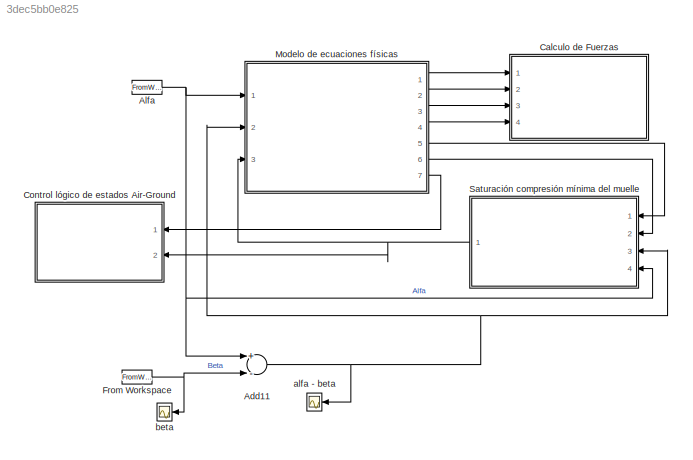
MODEL slx_3dec5bb0e825
KIND model
CONFIG AbsTol = auto
CONFIG EnableMultiTasking = off
CONFIG FixedStep = auto
CONFIG MaxStep = auto
CONFIG MinStep = auto
CONFIG RelTol = 1e-1
CONFIG SampleTimeConstraint = Unconstrained
CONFIG Solver = ode4
CONFIG SolverName = ode4
CONFIG StartTime = 0.0
CONFIG StopTime = tc
BLOCK [Sum] Add11
  InputSameDT = off
  Inputs = +-
  OutDataTypeStr = Inherit: Inherit via internal rule
  Ports = [2, 1]
  SaturateOnIntegerOverflow = off
BLOCK [FromWorkspace] Alfa 
  SampleTime = 0
  VariableName = alfa_t
  ZeroCross = on
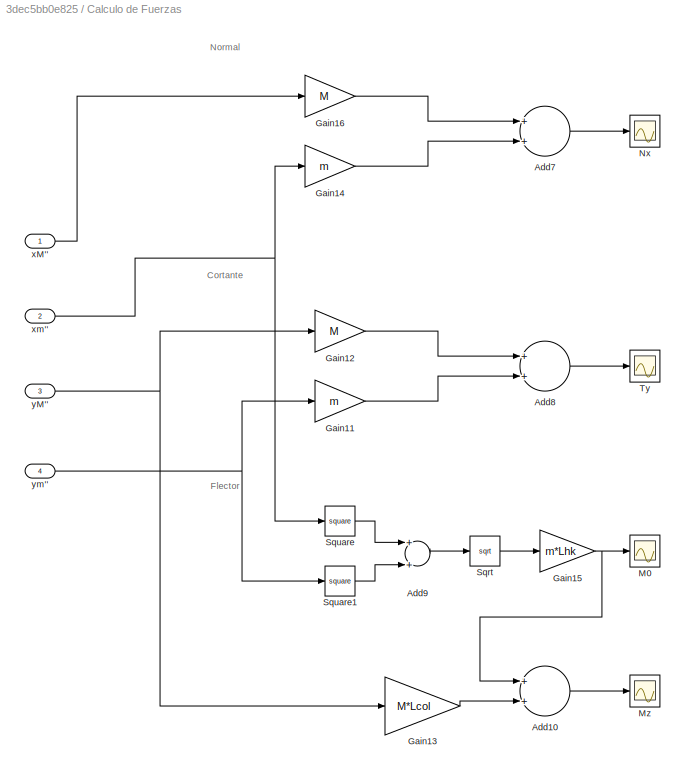
BLOCK [SubSystem] Calculo de Fuerzas
  Ports = [4]
  RequestExecContextInheritance = off
BLOCK [Sum] Calculo de Fuerzas/Add10
  InputSameDT = off
  OutDataTypeStr = Inherit: Inherit via internal rule
  Ports = [2, 1]
  SaturateOnIntegerOverflow = off
BLOCK [Sum] Calculo de Fuerzas/Add7
  InputSameDT = off
  OutDataTypeStr = Inherit: Inherit via internal rule
  Ports = [2, 1]
  SaturateOnIntegerOverflow = off
BLOCK [Sum] Calculo de Fuerzas/Add8
  InputSameDT = off
  OutDataTypeStr = Inherit: Inherit via internal rule
  Ports = [2, 1]
  SaturateOnIntegerOverflow = off
BLOCK [Sum] Calculo de Fuerzas/Add9
  InputSameDT = off
  OutDataTypeStr = Inherit: Inherit via internal rule
  Ports = [2, 1]
  SaturateOnIntegerOverflow = off
BLOCK [Gain] Calculo de Fuerzas/Gain11
  Gain = m
  OutDataTypeStr = Inherit: Inherit via internal rule
  ParamDataTypeStr = Inherit: Inherit via internal rule
  SaturateOnIntegerOverflow = off
BLOCK [Gain] Calculo de Fuerzas/Gain12
  Gain = M
  OutDataTypeStr = Inherit: Inherit via internal rule
  ParamDataTypeStr = Inherit: Inherit via internal rule
  SaturateOnIntegerOverflow = off
BLOCK [Gain] Calculo de Fuerzas/Gain13
  Gain = M*Lcol
  OutDataTypeStr = Inherit: Inherit via internal rule
  ParamDataTypeStr = Inherit: Inherit via internal rule
  SaturateOnIntegerOverflow = off
BLOCK [Gain] Calculo de Fuerzas/Gain14
  Gain = m
  OutDataTypeStr = Inherit: Inherit via internal rule
  ParamDataTypeStr = Inherit: Inherit via internal rule
  SaturateOnIntegerOverflow = off
BLOCK [Gain] Calculo de Fuerzas/Gain15
  Gain = m*Lhk
  OutDataTypeStr = Inherit: Inherit via internal rule
  ParamDataTypeStr = Inherit: Inherit via internal rule
  SaturateOnIntegerOverflow = off
BLOCK [Gain] Calculo de Fuerzas/Gain16
  Gain = M
  OutDataTypeStr = Inherit: Inherit via internal rule
  ParamDataTypeStr = Inherit: Inherit via internal rule
  SaturateOnIntegerOverflow = off
BLOCK [Scope] Calculo de Fuerzas/M0
  Floating = off
  NumInputPorts = 1
  Ports = [1]
  ScopeSpecificationString = Simulink.scopes.TimeScopeBlockCfg('CurrentConfiguration', extmgr.ConfigurationSet(extmgr.Configuration('Core','General UI',true),extmgr.Configuration('Core','Source UI',true),extmgr.Configuration('Sources','WiredSimulink',true,'DataLoggingVariableName','M0','DataLogging',true),extmgr.Configuration('Visuals','Time Domain',true,'SerializedDisplays',{struct('MinYLimReal','-2224357217.79249','MaxYLimR...<+1496ch>
BLOCK [Scope] Calculo de Fuerzas/Mz
  Floating = off
  NumInputPorts = 1
  Ports = [1]
  ScopeSpecificationString = Simulink.scopes.TimeScopeBlockCfg('CurrentConfiguration', extmgr.ConfigurationSet(extmgr.Configuration('Core','General UI',true),extmgr.Configuration('Core','Source UI',true),extmgr.Configuration('Sources','WiredSimulink',true,'DataLoggingVariableName','Mz','DataLogging',true),extmgr.Configuration('Visuals','Time Domain',true,'SerializedDisplays',{struct('MinYLimReal','-2.0288','MaxYLimReal','2.87...<+1419ch>
BLOCK [Scope] Calculo de Fuerzas/Nx
  Floating = off
  NumInputPorts = 1
  Ports = [1]
  ScopeSpecificationString = Simulink.scopes.TimeScopeBlockCfg('CurrentConfiguration', extmgr.ConfigurationSet(extmgr.Configuration('Core','General UI',true),extmgr.Configuration('Core','Source UI',true),extmgr.Configuration('Sources','WiredSimulink',true,'DataLoggingVariableName','Nx','DataLogging',true),extmgr.Configuration('Visuals','Time Domain',true,'SerializedDisplays',{struct('MinYLimReal','-2.0288','MaxYLimReal','2.87...<+1418ch>
BLOCK [Sqrt] Calculo de Fuerzas/Sqrt
BLOCK [Math] Calculo de Fuerzas/Square
  Operator = square
  Ports = [1, 1]
BLOCK [Math] Calculo de Fuerzas/Square1
  Operator = square
  Ports = [1, 1]
BLOCK [Scope] Calculo de Fuerzas/Ty
  Floating = off
  NumInputPorts = 1
  Ports = [1]
  ScopeSpecificationString = Simulink.scopes.TimeScopeBlockCfg('CurrentConfiguration', extmgr.ConfigurationSet(extmgr.Configuration('Core','General UI',true),extmgr.Configuration('Core','Source UI',true),extmgr.Configuration('Sources','WiredSimulink',true,'DataLoggingVariableName','Ty','DataLogging',true),extmgr.Configuration('Visuals','Time Domain',true,'SerializedDisplays',{struct('MinYLimReal','-2.0288','MaxYLimReal','2.87...<+1418ch>
BLOCK [Inport] Calculo de Fuerzas/xM''
  IconDisplay = Port number
BLOCK [Inport] Calculo de Fuerzas/xm''
  IconDisplay = Port number
  Port = 2
BLOCK [Inport] Calculo de Fuerzas/yM''
  IconDisplay = Port number
  Port = 3
BLOCK [Inport] Calculo de Fuerzas/ym''
  IconDisplay = Port number
  Port = 4
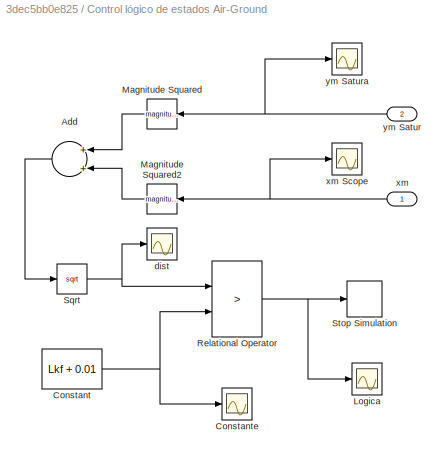
BLOCK [SubSystem] Control lógico de estados Air-Ground
  Ports = [2]
  RequestExecContextInheritance = off
BLOCK [Sum] Control lógico de estados Air-Ground/Add
  InputSameDT = off
  OutDataTypeStr = Inherit: Inherit via internal rule
  Ports = [2, 1]
  SaturateOnIntegerOverflow = off
BLOCK [Constant] Control lógico de estados Air-Ground/Constant
  Value = Lkf + 0.01
BLOCK [Scope] Control lógico de estados Air-Ground/Constante
  Floating = off
  NumInputPorts = 1
  Ports = [1]
  ScopeSpecificationString = Simulink.scopes.TimeScopeBlockCfg('CurrentConfiguration', extmgr.ConfigurationSet(extmgr.Configuration('Core','General UI',true),extmgr.Configuration('Core','Source UI',true),extmgr.Configuration('Sources','WiredSimulink',true,'DataLoggingVariableName','ScopeData2','DataLoggingSaveFormat','Array'),extmgr.Configuration('Visuals','Time Domain',true,'SerializedDisplays',{struct('MinYLimReal','0.185',...<+1477ch>
BLOCK [Scope] Control lógico de estados Air-Ground/Logica
  Floating = off
  NumInputPorts = 1
  Ports = [1]
  ScopeSpecificationString = Simulink.scopes.TimeScopeBlockCfg('CurrentConfiguration', extmgr.ConfigurationSet(extmgr.Configuration('Core','General UI',true),extmgr.Configuration('Core','Source UI',true),extmgr.Configuration('Sources','WiredSimulink',true,'DataLoggingVariableName','ScopeData1','DataLoggingSaveFormat','Array'),extmgr.Configuration('Visuals','Time Domain',true,'SerializedDisplays',{struct('MinYLimReal','-0.125'...<+1494ch>
BLOCK [Math] Control lógico de estados Air-Ground/Magnitude Squared
  Operator = magnitude^2
  Ports = [1, 1]
BLOCK [Math] Control lógico de estados Air-Ground/Magnitude Squared2
  Operator = magnitude^2
  Ports = [1, 1]
BLOCK [RelationalOperator] Control lógico de estados Air-Ground/Relational Operator
  InputSameDT = off
  Operator = >
  OutDataTypeStr = boolean
  Ports = [2, 1]
  RndMeth = Simplest
BLOCK [Sqrt] Control lógico de estados Air-Ground/Sqrt
BLOCK [Stop] Control lógico de estados Air-Ground/Stop Simulation
BLOCK [Scope] Control lógico de estados Air-Ground/dist
  Floating = off
  NumInputPorts = 1
  Ports = [1]
  ScopeSpecificationString = Simulink.scopes.TimeScopeBlockCfg('CurrentConfiguration', extmgr.ConfigurationSet(extmgr.Configuration('Core','General UI',true),extmgr.Configuration('Core','Source UI',true),extmgr.Configuration('Sources','WiredSimulink',true,'DataLoggingVariableName','ScopeData1','DataLoggingSaveFormat','Array'),extmgr.Configuration('Visuals','Time Domain',true,'SerializedDisplays',{struct('MinYLimReal','0.21027...<+1489ch>
BLOCK [Inport] Control lógico de estados Air-Ground/xm
  IconDisplay = Port number
BLOCK [Scope] Control lógico de estados Air-Ground/xm Scope
  Floating = off
  NumInputPorts = 1
  Ports = [1]
  ScopeSpecificationString = Simulink.scopes.TimeScopeBlockCfg('CurrentConfiguration', extmgr.ConfigurationSet(extmgr.Configuration('Core','General UI',true),extmgr.Configuration('Core','Source UI',true),extmgr.Configuration('Sources','WiredSimulink',true,'DataLoggingVariableName','ScopeData1','DataLoggingSaveFormat','Array'),extmgr.Configuration('Visuals','Time Domain',true,'SerializedDisplays',{struct('MinYLimReal','-0.2235...<+1489ch>
BLOCK [Inport] Control lógico de estados Air-Ground/ym Satur
  IconDisplay = Port number
  Port = 2
BLOCK [Scope] Control lógico de estados Air-Ground/ym Satura
  Floating = off
  NumInputPorts = 1
  Ports = [1]
  ScopeSpecificationString = Simulink.scopes.TimeScopeBlockCfg('CurrentConfiguration', extmgr.ConfigurationSet(extmgr.Configuration('Core','General UI',true),extmgr.Configuration('Core','Source UI',true),extmgr.Configuration('Sources','WiredSimulink',true,'DataLoggingVariableName','ScopeData1','DataLoggingSaveFormat','Array'),extmgr.Configuration('Visuals','Time Domain',true,'SerializedDisplays',{struct('MinYLimReal','0.00777...<+1493ch>
BLOCK [FromWorkspace] From Workspace
  SampleTime = 0
  VariableName = beta_t
  ZeroCross = on
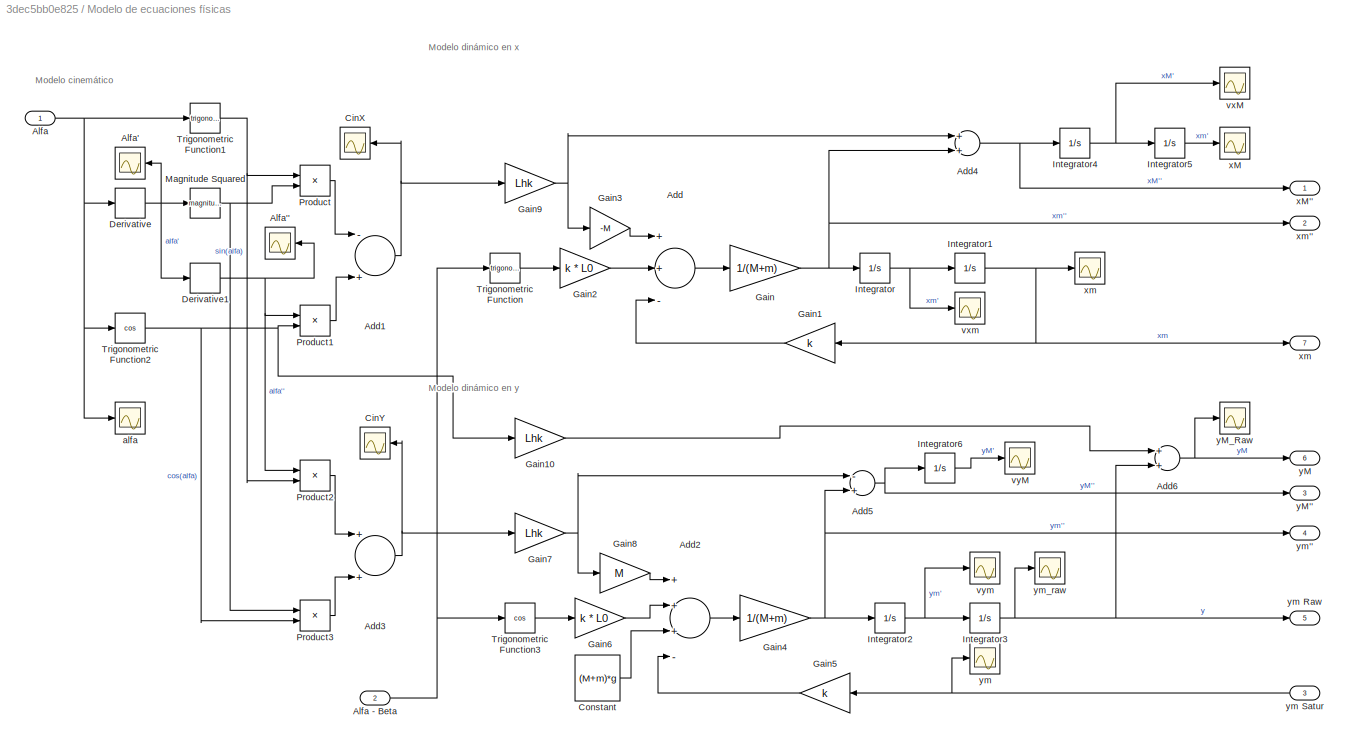
BLOCK [SubSystem] Modelo de ecuaciones físicas
  Ports = [3, 7]
  RequestExecContextInheritance = off
BLOCK [Sum] Modelo de ecuaciones físicas/Add
  InputSameDT = off
  Inputs = ++-
  OutDataTypeStr = Inherit: Inherit via internal rule
  Ports = [3, 1]
  SaturateOnIntegerOverflow = off
BLOCK [Sum] Modelo de ecuaciones físicas/Add1
  InputSameDT = off
  Inputs = -+
  OutDataTypeStr = Inherit: Inherit via internal rule
  Ports = [2, 1]
  SaturateOnIntegerOverflow = off
BLOCK [Sum] Modelo de ecuaciones físicas/Add2
  InputSameDT = off
  Inputs = +++-
  OutDataTypeStr = Inherit: Inherit via internal rule
  Ports = [4, 1]
  SaturateOnIntegerOverflow = off
BLOCK [Sum] Modelo de ecuaciones físicas/Add3
  InputSameDT = off
  OutDataTypeStr = Inherit: Inherit via internal rule
  Ports = [2, 1]
  SaturateOnIntegerOverflow = off
BLOCK [Sum] Modelo de ecuaciones físicas/Add4
  InputSameDT = off
  OutDataTypeStr = Inherit: Inherit via internal rule
  Ports = [2, 1]
  SaturateOnIntegerOverflow = off
BLOCK [Sum] Modelo de ecuaciones físicas/Add5
  InputSameDT = off
  Inputs = -+
  OutDataTypeStr = Inherit: Inherit via internal rule
  Ports = [2, 1]
  SaturateOnIntegerOverflow = off
BLOCK [Sum] Modelo de ecuaciones físicas/Add6
  InputSameDT = off
  OutDataTypeStr = Inherit: Inherit via internal rule
  Ports = [2, 1]
  SaturateOnIntegerOverflow = off
BLOCK [Inport] Modelo de ecuaciones físicas/Alfa
  IconDisplay = Port number
BLOCK [Inport] Modelo de ecuaciones físicas/Alfa - Beta
  IconDisplay = Port number
  Port = 2
BLOCK [Scope] Modelo de ecuaciones físicas/Alfa'
  Floating = off
  NumInputPorts = 1
  Ports = [1]
  ScopeSpecificationString = Simulink.scopes.TimeScopeBlockCfg('CurrentConfiguration', extmgr.ConfigurationSet(extmgr.Configuration('Core','General UI',true),extmgr.Configuration('Core','Source UI',true),extmgr.Configuration('Sources','WiredSimulink',true,'DataLoggingVariableName','ScopeData1'),extmgr.Configuration('Visuals','Time Domain',true,'SerializedDisplays',{struct('MinYLimReal','-9.06437','MaxYLimReal','1.00715','YLab...<+1417ch>
BLOCK [Scope] Modelo de ecuaciones físicas/Alfa''
  Floating = off
  NumInputPorts = 1
  Ports = [1]
  ScopeSpecificationString = Simulink.scopes.TimeScopeBlockCfg('CurrentConfiguration', extmgr.ConfigurationSet(extmgr.Configuration('Core','General UI',true),extmgr.Configuration('Core','Source UI',true),extmgr.Configuration('Sources','WiredSimulink',true,'DataLoggingVariableName','ScopeData2'),extmgr.Configuration('Visuals','Time Domain',true,'SerializedDisplays',{struct('MinYLimReal','-1390.87181','MaxYLimReal','380.43786',...<+1457ch>
BLOCK [Scope] Modelo de ecuaciones físicas/CinX
  Floating = off
  NumInputPorts = 1
  Ports = [1]
  ScopeSpecificationString = Simulink.scopes.TimeScopeBlockCfg('CurrentConfiguration', extmgr.ConfigurationSet(extmgr.Configuration('Core','General UI',true),extmgr.Configuration('Core','Source UI',true),extmgr.Configuration('Sources','WiredSimulink',true,'DataLoggingVariableName','ScopeData4'),extmgr.Configuration('Visuals','Time Domain',true,'SerializedDisplays',{struct('MinYLimReal','-675.09531','MaxYLimReal','775.61058','...<+1402ch>
BLOCK [Scope] Modelo de ecuaciones físicas/CinY
  Floating = off
  NumInputPorts = 1
  Ports = [1]
  ScopeSpecificationString = Simulink.scopes.TimeScopeBlockCfg('CurrentConfiguration', extmgr.ConfigurationSet(extmgr.Configuration('Core','General UI',true),extmgr.Configuration('Core','Source UI',true),extmgr.Configuration('Sources','WiredSimulink',true,'DataLoggingVariableName','ScopeData3'),extmgr.Configuration('Visuals','Time Domain',true,'SerializedDisplays',{struct('MinYLimReal','-66366026055.32136','MaxYLimReal','2385...<+1513ch>
BLOCK [Constant] Modelo de ecuaciones físicas/Constant
  Value = (M+m)*g
BLOCK [Derivative] Modelo de ecuaciones físicas/Derivative
  CoefficientInTFapproximation = 1000
BLOCK [Derivative] Modelo de ecuaciones físicas/Derivative1
  CoefficientInTFapproximation = 1000
BLOCK [Gain] Modelo de ecuaciones físicas/Gain
  Gain = 1/(M+m)
  OutDataTypeStr = Inherit: Inherit via internal rule
  ParamDataTypeStr = Inherit: Inherit via internal rule
  SaturateOnIntegerOverflow = off
BLOCK [Gain] Modelo de ecuaciones físicas/Gain1
  Gain = k
  OutDataTypeStr = Inherit: Inherit via internal rule
  ParamDataTypeStr = Inherit: Inherit via internal rule
  SaturateOnIntegerOverflow = off
BLOCK [Gain] Modelo de ecuaciones físicas/Gain10
  Gain = Lhk
  OutDataTypeStr = Inherit: Inherit via internal rule
  ParamDataTypeStr = Inherit: Inherit via internal rule
  SaturateOnIntegerOverflow = off
BLOCK [Gain] Modelo de ecuaciones físicas/Gain2
  Gain = k * L0
  OutDataTypeStr = Inherit: Inherit via internal rule
  ParamDataTypeStr = Inherit: Inherit via internal rule
  SaturateOnIntegerOverflow = off
BLOCK [Gain] Modelo de ecuaciones físicas/Gain3
  Gain = -M
  OutDataTypeStr = Inherit: Inherit via internal rule
  ParamDataTypeStr = Inherit: Inherit via internal rule
  SaturateOnIntegerOverflow = off
BLOCK [Gain] Modelo de ecuaciones físicas/Gain4
  Gain = 1/(M+m)
  OutDataTypeStr = Inherit: Inherit via internal rule
  ParamDataTypeStr = Inherit: Inherit via internal rule
  SaturateOnIntegerOverflow = off
BLOCK [Gain] Modelo de ecuaciones físicas/Gain5
  Gain = k
  OutDataTypeStr = Inherit: Inherit via internal rule
  ParamDataTypeStr = Inherit: Inherit via internal rule
  SaturateOnIntegerOverflow = off
BLOCK [Gain] Modelo de ecuaciones físicas/Gain6
  Gain = k * L0
  OutDataTypeStr = Inherit: Inherit via internal rule
  ParamDataTypeStr = Inherit: Inherit via internal rule
  SaturateOnIntegerOverflow = off
BLOCK [Gain] Modelo de ecuaciones físicas/Gain7
  Gain = Lhk
  OutDataTypeStr = Inherit: Inherit via internal rule
  ParamDataTypeStr = Inherit: Inherit via internal rule
  SaturateOnIntegerOverflow = off
BLOCK [Gain] Modelo de ecuaciones físicas/Gain8
  Gain = M
  OutDataTypeStr = Inherit: Inherit via internal rule
  ParamDataTypeStr = Inherit: Inherit via internal rule
  SaturateOnIntegerOverflow = off
BLOCK [Gain] Modelo de ecuaciones físicas/Gain9
  Gain = Lhk
  OutDataTypeStr = Inherit: Inherit via internal rule
  ParamDataTypeStr = Inherit: Inherit via internal rule
  SaturateOnIntegerOverflow = off
BLOCK [Integrator] Modelo de ecuaciones físicas/Integrator
  InitialCondition = vx0
  Ports = [1, 1]
BLOCK [Integrator] Modelo de ecuaciones físicas/Integrator1
  InitialCondition = x0
  Ports = [1, 1]
BLOCK [Integrator] Modelo de ecuaciones físicas/Integrator2
  InitialCondition = vy0
  Ports = [1, 1]
BLOCK [Integrator] Modelo de ecuaciones físicas/Integrator3
  InitialCondition = y0
  Ports = [1, 1]
BLOCK [Integrator] Modelo de ecuaciones físicas/Integrator4
  InitialCondition = vxM0
  Ports = [1, 1]
BLOCK [Integrator] Modelo de ecuaciones físicas/Integrator5
  InitialCondition = xM0
  Ports = [1, 1]
BLOCK [Integrator] Modelo de ecuaciones físicas/Integrator6
  InitialCondition = vyM0
  Ports = [1, 1]
BLOCK [Math] Modelo de ecuaciones físicas/Magnitude Squared
  Operator = magnitude^2
  Ports = [1, 1]
BLOCK [Product] Modelo de ecuaciones físicas/Product
  InputSameDT = off
  OutDataTypeStr = Inherit: Inherit via internal rule
  Ports = [2, 1]
  RndMeth = Floor
  SaturateOnIntegerOverflow = off
BLOCK [Product] Modelo de ecuaciones físicas/Product1
  InputSameDT = off
  OutDataTypeStr = Inherit: Inherit via internal rule
  Ports = [2, 1]
  RndMeth = Floor
  SaturateOnIntegerOverflow = off
BLOCK [Product] Modelo de ecuaciones físicas/Product2
  InputSameDT = off
  OutDataTypeStr = Inherit: Inherit via internal rule
  Ports = [2, 1]
  RndMeth = Floor
  SaturateOnIntegerOverflow = off
BLOCK [Product] Modelo de ecuaciones físicas/Product3
  InputSameDT = off
  OutDataTypeStr = Inherit: Inherit via internal rule
  Ports = [2, 1]
  RndMeth = Floor
  SaturateOnIntegerOverflow = off
BLOCK [Trigonometry] Modelo de ecuaciones físicas/Trigonometric Function
  Ports = [1, 1]
BLOCK [Trigonometry] Modelo de ecuaciones físicas/Trigonometric Function1
  Ports = [1, 1]
BLOCK [Trigonometry] Modelo de ecuaciones físicas/Trigonometric Function2
  Operator = cos
  Ports = [1, 1]
BLOCK [Trigonometry] Modelo de ecuaciones físicas/Trigonometric Function3
  Operator = cos
  Ports = [1, 1]
BLOCK [Scope] Modelo de ecuaciones físicas/alfa
  Floating = off
  NumInputPorts = 1
  Ports = [1]
  ScopeSpecificationString = Simulink.scopes.TimeScopeBlockCfg('CurrentConfiguration', extmgr.ConfigurationSet(extmgr.Configuration('Core','General UI',true),extmgr.Configuration('Core','Source UI',true),extmgr.Configuration('Sources','WiredSimulink',true,'DataLoggingVariableName','ScopeData3'),extmgr.Configuration('Visuals','Time Domain',true,'SerializedDisplays',{struct('MinYLimReal','-0.41614','MaxYLimReal','0.93513','YLab...<+1459ch>
BLOCK [Scope] Modelo de ecuaciones físicas/vxM 
  Floating = off
  NumInputPorts = 1
  Ports = [1]
  ScopeSpecificationString = Simulink.scopes.TimeScopeBlockCfg('CurrentConfiguration', extmgr.ConfigurationSet(extmgr.Configuration('Core','General UI',true),extmgr.Configuration('Core','Source UI',true),extmgr.Configuration('Sources','WiredSimulink',true,'DataLogging',true,'DataLoggingVariableName','vxM'),extmgr.Configuration('Visuals','Time Domain',true,'SerializedDisplays',{struct('MinYLimReal','-4.94939','MaxYLimReal','-1...<+1377ch>
BLOCK [Scope] Modelo de ecuaciones físicas/vxm
  Floating = off
  NumInputPorts = 1
  Ports = [1]
  ScopeSpecificationString = Simulink.scopes.TimeScopeBlockCfg('CurrentConfiguration', extmgr.ConfigurationSet(extmgr.Configuration('Core','General UI',true),extmgr.Configuration('Core','Source UI',true),extmgr.Configuration('Sources','WiredSimulink',true,'DataLoggingVariableName','vx','DataLogging',true),extmgr.Configuration('Visuals','Time Domain',true,'SerializedDisplays',{struct('MinYLimReal','-2.71421','MaxYLimReal','1.3...<+1372ch>
BLOCK [Scope] Modelo de ecuaciones físicas/vyM
  Floating = off
  NumInputPorts = 1
  Ports = [1]
  ScopeSpecificationString = Simulink.scopes.TimeScopeBlockCfg('CurrentConfiguration', extmgr.ConfigurationSet(extmgr.Configuration('Core','General UI',true),extmgr.Configuration('Core','Source UI',true),extmgr.Configuration('Sources','WiredSimulink',true,'DataLogging',true,'DataLoggingVariableName','vyM'),extmgr.Configuration('Visuals','Time Domain',true,'SerializedDisplays',{struct('MinYLimReal','-0.53763','MaxYLimReal','2....<+1375ch>
BLOCK [Scope] Modelo de ecuaciones físicas/vym
  Floating = off
  NumInputPorts = 1
  Ports = [1]
  ScopeSpecificationString = Simulink.scopes.TimeScopeBlockCfg('CurrentConfiguration', extmgr.ConfigurationSet(extmgr.Configuration('Core','General UI',true),extmgr.Configuration('Core','Source UI',true),extmgr.Configuration('Sources','WiredSimulink',true,'DataLoggingVariableName','vy','DataLogging',true),extmgr.Configuration('Visuals','Time Domain',true,'SerializedDisplays',{struct('MinYLimReal','-2.60637','MaxYLimReal','2.3...<+1470ch>
BLOCK [Scope] Modelo de ecuaciones físicas/xM
  Floating = off
  NumInputPorts = 1
  Ports = [1]
  ScopeSpecificationString = Simulink.scopes.TimeScopeBlockCfg('CurrentConfiguration', extmgr.ConfigurationSet(extmgr.Configuration('Core','General UI',true),extmgr.Configuration('Core','Source UI',true),extmgr.Configuration('Sources','WiredSimulink',true,'DataLogging',true,'DataLoggingVariableName','xM'),extmgr.Configuration('Visuals','Time Domain',true,'SerializedDisplays',{struct('MinYLimReal','-0.91521','MaxYLimReal','0.4...<+1374ch>
BLOCK [Outport] Modelo de ecuaciones físicas/xM''
  IconDisplay = Port number
BLOCK [Scope] Modelo de ecuaciones físicas/xm
  Floating = off
  NumInputPorts = 1
  Ports = [1]
  ScopeSpecificationString = Simulink.scopes.TimeScopeBlockCfg('CurrentConfiguration', extmgr.ConfigurationSet(extmgr.Configuration('Core','General UI',true),extmgr.Configuration('Core','Source UI',true),extmgr.Configuration('Sources','WiredSimulink',true,'DataLogging',true,'DataLoggingVariableName','x'),extmgr.Configuration('Visuals','Time Domain',true,'SerializedDisplays',{struct('MinYLimReal','-0.21973','MaxYLimReal','0.19...<+1446ch>
BLOCK [Outport] Modelo de ecuaciones físicas/xm 
  IconDisplay = Port number
  Port = 7
BLOCK [Outport] Modelo de ecuaciones físicas/xm''
  IconDisplay = Port number
  Port = 2
BLOCK [Outport] Modelo de ecuaciones físicas/yM
  IconDisplay = Port number
  Port = 6
BLOCK [Outport] Modelo de ecuaciones físicas/yM''
  IconDisplay = Port number
  Port = 3
BLOCK [Scope] Modelo de ecuaciones físicas/yM_Raw
  Floating = off
  NumInputPorts = 1
  Ports = [1]
  ScopeSpecificationString = Simulink.scopes.TimeScopeBlockCfg('CurrentConfiguration', extmgr.ConfigurationSet(extmgr.Configuration('Core','General UI',true),extmgr.Configuration('Core','Source UI',true),extmgr.Configuration('Sources','WiredSimulink',true,'DataLoggingVariableName','ScopeData1','DataLoggingSaveFormat','Array'),extmgr.Configuration('Visuals','Time Domain',true,'SerializedDisplays',{struct('MinYLimReal','0.09523...<+1462ch>
BLOCK [Scope] Modelo de ecuaciones físicas/ym
  Floating = off
  NumInputPorts = 1
  Ports = [1]
  ScopeSpecificationString = Simulink.scopes.TimeScopeBlockCfg('CurrentConfiguration', extmgr.ConfigurationSet(extmgr.Configuration('Core','General UI',true),extmgr.Configuration('Core','Source UI',true),extmgr.Configuration('Sources','WiredSimulink',true,'DataLogging',true,'DataLoggingVariableName','y'),extmgr.Configuration('Visuals','Time Domain',true,'SerializedDisplays',{struct('MinYLimReal','0.03269','MaxYLimReal','0.264...<+1471ch>
BLOCK [Outport] Modelo de ecuaciones físicas/ym Raw
  IconDisplay = Port number
  Port = 5
BLOCK [Inport] Modelo de ecuaciones físicas/ym Satur
  IconDisplay = Port number
  Port = 3
BLOCK [Outport] Modelo de ecuaciones físicas/ym''
  IconDisplay = Port number
  Port = 4
BLOCK [Scope] Modelo de ecuaciones físicas/ym_raw 
  Floating = off
  NumInputPorts = 1
  Ports = [1]
  ScopeSpecificationString = Simulink.scopes.TimeScopeBlockCfg('CurrentConfiguration', extmgr.ConfigurationSet(extmgr.Configuration('Core','General UI',true),extmgr.Configuration('Core','Source UI',true),extmgr.Configuration('Sources','WiredSimulink',true,'DataLoggingVariableName','ScopeData1','DataLoggingSaveFormat','Array'),extmgr.Configuration('Visuals','Time Domain',true,'SerializedDisplays',{struct('MinYLimReal','-0.0477...<+1488ch>
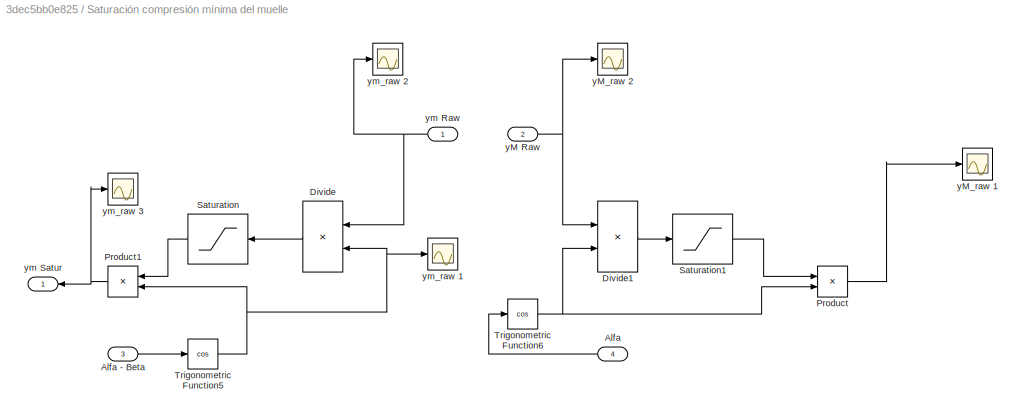
BLOCK [SubSystem] Saturación compresión mínima del muelle
  Ports = [4, 1]
  RequestExecContextInheritance = off
BLOCK [Inport] Saturación compresión mínima del muelle/Alfa
  IconDisplay = Port number
  Port = 4
BLOCK [Inport] Saturación compresión mínima del muelle/Alfa - Beta
  IconDisplay = Port number
  Port = 3
BLOCK [Product] Saturación compresión mínima del muelle/Divide
  InputSameDT = off
  Inputs = */
  OutDataTypeStr = Inherit: Inherit via internal rule
  Ports = [2, 1]
  RndMeth = Floor
  SaturateOnIntegerOverflow = off
BLOCK [Product] Saturación compresión mínima del muelle/Divide1
  InputSameDT = off
  Inputs = */
  OutDataTypeStr = Inherit: Inherit via internal rule
  Ports = [2, 1]
  RndMeth = Floor
  SaturateOnIntegerOverflow = off
BLOCK [Product] Saturación compresión mínima del muelle/Product
  InputSameDT = off
  OutDataTypeStr = Inherit: Inherit via internal rule
  Ports = [2, 1]
  RndMeth = Floor
  SaturateOnIntegerOverflow = off
BLOCK [Product] Saturación compresión mínima del muelle/Product1
  InputSameDT = off
  OutDataTypeStr = Inherit: Inherit via internal rule
  Ports = [2, 1]
  RndMeth = Floor
  SaturateOnIntegerOverflow = off
BLOCK [Saturate] Saturación compresión mínima del muelle/Saturation
  InputPortMap = u0
  LowerLimit = -inf
  Ports = [1, 1]
  UpperLimit = inf
BLOCK [Saturate] Saturación compresión mínima del muelle/Saturation1
  InputPortMap = u0
  LowerLimit = -inf
  Ports = [1, 1]
  UpperLimit = inf
BLOCK [Trigonometry] Saturación compresión mínima del muelle/Trigonometric Function5
  Operator = cos
  Ports = [1, 1]
BLOCK [Trigonometry] Saturación compresión mínima del muelle/Trigonometric Function6
  Operator = cos
  Ports = [1, 1]
BLOCK [Inport] Saturación compresión mínima del muelle/yM Raw
  IconDisplay = Port number
  Port = 2
BLOCK [Scope] Saturación compresión mínima del muelle/yM_raw 1
  Floating = off
  NumInputPorts = 1
  Ports = [1]
  ScopeSpecificationString = Simulink.scopes.TimeScopeBlockCfg('CurrentConfiguration', extmgr.ConfigurationSet(extmgr.Configuration('Core','General UI',true),extmgr.Configuration('Core','Source UI',true),extmgr.Configuration('Sources','WiredSimulink',true,'DataLoggingVariableName','yM','DataLogging',true),extmgr.Configuration('Visuals','Time Domain',true,'SerializedDisplays',{struct('MinYLimReal','0.09523','MaxYLimReal','0.88...<+1471ch>
BLOCK [Scope] Saturación compresión mínima del muelle/yM_raw 2
  Floating = off
  NumInputPorts = 1
  Ports = [1]
  ScopeSpecificationString = Simulink.scopes.TimeScopeBlockCfg('CurrentConfiguration', extmgr.ConfigurationSet(extmgr.Configuration('Core','General UI',true),extmgr.Configuration('Core','Source UI',true),extmgr.Configuration('Sources','WiredSimulink',true,'DataLoggingVariableName','ScopeData2','DataLoggingSaveFormat','Array'),extmgr.Configuration('Visuals','Time Domain',true,'SerializedDisplays',{struct('MinYLimReal','0.29487...<+1491ch>
BLOCK [Inport] Saturación compresión mínima del muelle/ym Raw
  IconDisplay = Port number
BLOCK [Outport] Saturación compresión mínima del muelle/ym Satur
  IconDisplay = Port number
BLOCK [Scope] Saturación compresión mínima del muelle/ym_raw 1
  Floating = off
  NumInputPorts = 1
  Ports = [1]
  ScopeSpecificationString = Simulink.scopes.TimeScopeBlockCfg('CurrentConfiguration', extmgr.ConfigurationSet(extmgr.Configuration('Core','General UI',true),extmgr.Configuration('Core','Source UI',true),extmgr.Configuration('Sources','WiredSimulink',true,'DataLoggingVariableName','ScopeData2','DataLoggingSaveFormat','Array'),extmgr.Configuration('Visuals','Time Domain',true,'SerializedDisplays',{struct('MinYLimReal','0.9626'...<+1504ch>
BLOCK [Scope] Saturación compresión mínima del muelle/ym_raw 2
  Floating = off
  NumInputPorts = 1
  Ports = [1]
  ScopeSpecificationString = Simulink.scopes.TimeScopeBlockCfg('CurrentConfiguration', extmgr.ConfigurationSet(extmgr.Configuration('Core','General UI',true),extmgr.Configuration('Core','Source UI',true),extmgr.Configuration('Sources','WiredSimulink',true,'DataLoggingVariableName','ScopeData5','DataLoggingSaveFormat','Array'),extmgr.Configuration('Visuals','Time Domain',true,'SerializedDisplays',{struct('MinYLimReal','-0.0499...<+1491ch>
BLOCK [Scope] Saturación compresión mínima del muelle/ym_raw 3
  Floating = off
  NumInputPorts = 1
  Ports = [1]
  ScopeSpecificationString = Simulink.scopes.TimeScopeBlockCfg('CurrentConfiguration', extmgr.ConfigurationSet(extmgr.Configuration('Core','General UI',true),extmgr.Configuration('Core','Source UI',true),extmgr.Configuration('Sources','WiredSimulink',true,'DataLoggingVariableName','ScopeData4','DataLoggingSaveFormat','Array'),extmgr.Configuration('Visuals','Time Domain',true,'SerializedDisplays',{struct('MinYLimReal','-0.0499...<+1493ch>
BLOCK [Scope] alfa - beta
  Floating = off
  NumInputPorts = 1
  Ports = [1]
  ScopeSpecificationString = Simulink.scopes.TimeScopeBlockCfg('CurrentConfiguration', extmgr.ConfigurationSet(extmgr.Configuration('Core','General UI',true),extmgr.Configuration('Core','Source UI',true),extmgr.Configuration('Sources','WiredSimulink',true,'DataLoggingVariableName','ScopeData2'),extmgr.Configuration('Visuals','Time Domain',true,'SerializedDisplays',{struct('MinYLimReal','-0.76097','MaxYLimReal','0.68207','YLab...<+1393ch>
BLOCK [Scope] beta
  Floating = off
  NumInputPorts = 1
  Ports = [1]
  ScopeSpecificationString = Simulink.scopes.TimeScopeBlockCfg('CurrentConfiguration', extmgr.ConfigurationSet(extmgr.Configuration('Core','General UI',true),extmgr.Configuration('Core','Source UI',true),extmgr.Configuration('Sources','WiredSimulink',true,'DataLoggingVariableName','ScopeData1'),extmgr.Configuration('Visuals','Time Domain',true,'SerializedDisplays',{struct('MinYLimReal','0.05579','MaxYLimReal','0.33767','YLabe...<+1361ch>
ANNOTATION Calculo de Fuerzas: Cortante
ANNOTATION Calculo de Fuerzas: Flector
ANNOTATION Calculo de Fuerzas: Normal
ANNOTATION Modelo de ecuaciones físicas: Modelo cinemático
ANNOTATION Modelo de ecuaciones físicas: Modelo dinámico en x
ANNOTATION Modelo de ecuaciones físicas: Modelo dinámico en y
NET Add11:1 -> Modelo de ecuaciones físicas:2, Saturación compresión mínima del muelle:3, alfa - beta:1
NET Alfa :1 -> Add11:1, Modelo de ecuaciones físicas:1, Saturación compresión mínima del muelle:4
LINE Calculo de Fuerzas/Add10:1 -> Calculo de Fuerzas/Mz:1
LINE Calculo de Fuerzas/Add7:1 -> Calculo de Fuerzas/Nx:1
LINE Calculo de Fuerzas/Add8:1 -> Calculo de Fuerzas/Ty:1
LINE Calculo de Fuerzas/Add9:1 -> Calculo de Fuerzas/Sqrt:1
LINE Calculo de Fuerzas/Gain11:1 -> Calculo de Fuerzas/Add8:2
LINE Calculo de Fuerzas/Gain12:1 -> Calculo de Fuerzas/Add8:1
LINE Calculo de Fuerzas/Gain13:1 -> Calculo de Fuerzas/Add10:2
LINE Calculo de Fuerzas/Gain14:1 -> Calculo de Fuerzas/Add7:2
NET Calculo de Fuerzas/Gain15:1 -> Calculo de Fuerzas/Add10:1, Calculo de Fuerzas/M0:1
LINE Calculo de Fuerzas/Gain16:1 -> Calculo de Fuerzas/Add7:1
LINE Calculo de Fuerzas/Sqrt:1 -> Calculo de Fuerzas/Gain15:1
LINE Calculo de Fuerzas/Square1:1 -> Calculo de Fuerzas/Add9:2
LINE Calculo de Fuerzas/Square:1 -> Calculo de Fuerzas/Add9:1
LINE Calculo de Fuerzas/xM'':1 -> Calculo de Fuerzas/Gain16:1
NET Calculo de Fuerzas/xm'':1 -> Calculo de Fuerzas/Gain14:1, Calculo de Fuerzas/Square:1
NET Calculo de Fuerzas/yM'':1 -> Calculo de Fuerzas/Gain12:1, Calculo de Fuerzas/Gain13:1
NET Calculo de Fuerzas/ym'':1 -> Calculo de Fuerzas/Gain11:1, Calculo de Fuerzas/Square1:1
LINE Control lógico de estados Air-Ground/Add:1 -> Control lógico de estados Air-Ground/Sqrt:1
NET Control lógico de estados Air-Ground/Constant:1 -> Control lógico de estados Air-Ground/Constante:1, Control lógico de estados Air-Ground/Relational Operator:2
LINE Control lógico de estados Air-Ground/Magnitude Squared2:1 -> Control lógico de estados Air-Ground/Add:2
LINE Control lógico de estados Air-Ground/Magnitude Squared:1 -> Control lógico de estados Air-Ground/Add:1
NET Control lógico de estados Air-Ground/Relational Operator:1 -> Control lógico de estados Air-Ground/Logica:1, Control lógico de estados Air-Ground/Stop Simulation:1
NET Control lógico de estados Air-Ground/Sqrt:1 -> Control lógico de estados Air-Ground/Relational Operator:1, Control lógico de estados Air-Ground/dist:1
NET Control lógico de estados Air-Ground/xm:1 -> Control lógico de estados Air-Ground/Magnitude Squared2:1, Control lógico de estados Air-Ground/xm Scope:1
NET Control lógico de estados Air-Ground/ym Satur:1 -> Control lógico de estados Air-Ground/Magnitude Squared:1, Control lógico de estados Air-Ground/ym Satura:1
NET From Workspace:1 -> Add11:2, beta:1
NET Modelo de ecuaciones físicas/Add1:1 -> Modelo de ecuaciones físicas/CinX:1, Modelo de ecuaciones físicas/Gain9:1
LINE Modelo de ecuaciones físicas/Add2:1 -> Modelo de ecuaciones físicas/Gain4:1
NET Modelo de ecuaciones físicas/Add3:1 -> Modelo de ecuaciones físicas/CinY:1, Modelo de ecuaciones físicas/Gain7:1
NET Modelo de ecuaciones físicas/Add4:1 -> Modelo de ecuaciones físicas/Integrator4:1, Modelo de ecuaciones físicas/xM'':1
NET Modelo de ecuaciones físicas/Add5:1 -> Modelo de ecuaciones físicas/Integrator6:1, Modelo de ecuaciones físicas/yM'':1
NET Modelo de ecuaciones físicas/Add6:1 -> Modelo de ecuaciones físicas/yM:1, Modelo de ecuaciones físicas/yM_Raw:1
LINE Modelo de ecuaciones físicas/Add:1 -> Modelo de ecuaciones físicas/Gain:1
NET Modelo de ecuaciones físicas/Alfa - Beta:1 -> Modelo de ecuaciones físicas/Trigonometric Function3:1, Modelo de ecuaciones físicas/Trigonometric Function:1
NET Modelo de ecuaciones físicas/Alfa:1 -> Modelo de ecuaciones físicas/Derivative:1, Modelo de ecuaciones físicas/Trigonometric Function1:1, Modelo de ecuaciones físicas/Trigonometric Function2:1, Modelo de ecuaciones físicas/alfa:1
LINE Modelo de ecuaciones físicas/Constant:1 -> Modelo de ecuaciones físicas/Add2:3
NET Modelo de ecuaciones físicas/Derivative1:1 -> Modelo de ecuaciones físicas/Alfa'':1, Modelo de ecuaciones físicas/Product1:1, Modelo de ecuaciones físicas/Product2:1
NET Modelo de ecuaciones físicas/Derivative:1 -> Modelo de ecuaciones físicas/Alfa':1, Modelo de ecuaciones físicas/Derivative1:1, Modelo de ecuaciones físicas/Magnitude Squared:1
LINE Modelo de ecuaciones físicas/Gain10:1 -> Modelo de ecuaciones físicas/Add6:1
LINE Modelo de ecuaciones físicas/Gain1:1 -> Modelo de ecuaciones físicas/Add:3
LINE Modelo de ecuaciones físicas/Gain2:1 -> Modelo de ecuaciones físicas/Add:2
LINE Modelo de ecuaciones físicas/Gain3:1 -> Modelo de ecuaciones físicas/Add:1
NET Modelo de ecuaciones físicas/Gain4:1 -> Modelo de ecuaciones físicas/Add5:2, Modelo de ecuaciones físicas/Integrator2:1, Modelo de ecuaciones físicas/ym'':1
LINE Modelo de ecuaciones físicas/Gain5:1 -> Modelo de ecuaciones físicas/Add2:4
LINE Modelo de ecuaciones físicas/Gain6:1 -> Modelo de ecuaciones físicas/Add2:2
NET Modelo de ecuaciones físicas/Gain7:1 -> Modelo de ecuaciones físicas/Add5:1, Modelo de ecuaciones físicas/Gain8:1
LINE Modelo de ecuaciones físicas/Gain8:1 -> Modelo de ecuaciones físicas/Add2:1
NET Modelo de ecuaciones físicas/Gain9:1 -> Modelo de ecuaciones físicas/Add4:1, Modelo de ecuaciones físicas/Gain3:1
NET Modelo de ecuaciones físicas/Gain:1 -> Modelo de ecuaciones físicas/Add4:2, Modelo de ecuaciones físicas/Integrator:1, Modelo de ecuaciones físicas/xm'':1
NET Modelo de ecuaciones físicas/Integrator1:1 -> Modelo de ecuaciones físicas/Gain1:1, Modelo de ecuaciones físicas/xm :1, Modelo de ecuaciones físicas/xm:1
NET Modelo de ecuaciones físicas/Integrator2:1 -> Modelo de ecuaciones físicas/Integrator3:1, Modelo de ecuaciones físicas/vym:1
NET Modelo de ecuaciones físicas/Integrator3:1 -> Modelo de ecuaciones físicas/Add6:2, Modelo de ecuaciones físicas/ym Raw:1, Modelo de ecuaciones físicas/ym_raw :1
NET Modelo de ecuaciones físicas/Integrator4:1 -> Modelo de ecuaciones físicas/Integrator5:1, Modelo de ecuaciones físicas/vxM :1
LINE Modelo de ecuaciones físicas/Integrator5:1 -> Modelo de ecuaciones físicas/xM:1
LINE Modelo de ecuaciones físicas/Integrator6:1 -> Modelo de ecuaciones físicas/vyM:1
NET Modelo de ecuaciones físicas/Integrator:1 -> Modelo de ecuaciones físicas/Integrator1:1, Modelo de ecuaciones físicas/vxm:1
NET Modelo de ecuaciones físicas/Magnitude Squared:1 -> Modelo de ecuaciones físicas/Product3:1, Modelo de ecuaciones físicas/Product:2
LINE Modelo de ecuaciones físicas/Product1:1 -> Modelo de ecuaciones físicas/Add1:2
LINE Modelo de ecuaciones físicas/Product2:1 -> Modelo de ecuaciones físicas/Add3:1
LINE Modelo de ecuaciones físicas/Product3:1 -> Modelo de ecuaciones físicas/Add3:2
LINE Modelo de ecuaciones físicas/Product:1 -> Modelo de ecuaciones físicas/Add1:1
NET Modelo de ecuaciones físicas/Trigonometric Function1:1 -> Modelo de ecuaciones físicas/Product2:2, Modelo de ecuaciones físicas/Product:1
NET Modelo de ecuaciones físicas/Trigonometric Function2:1 -> Modelo de ecuaciones físicas/Gain10:1, Modelo de ecuaciones físicas/Product1:2, Modelo de ecuaciones físicas/Product3:2
LINE Modelo de ecuaciones físicas/Trigonometric Function3:1 -> Modelo de ecuaciones físicas/Gain6:1
LINE Modelo de ecuaciones físicas/Trigonometric Function:1 -> Modelo de ecuaciones físicas/Gain2:1
NET Modelo de ecuaciones físicas/ym Satur:1 -> Modelo de ecuaciones físicas/Gain5:1, Modelo de ecuaciones físicas/ym:1
LINE Modelo de ecuaciones físicas:1 -> Calculo de Fuerzas:1
LINE Modelo de ecuaciones físicas:2 -> Calculo de Fuerzas:2
LINE Modelo de ecuaciones físicas:3 -> Calculo de Fuerzas:3
LINE Modelo de ecuaciones físicas:4 -> Calculo de Fuerzas:4
LINE Modelo de ecuaciones físicas:5 -> Saturación compresión mínima del muelle:1
LINE Modelo de ecuaciones físicas:6 -> Saturación compresión mínima del muelle:2
LINE Modelo de ecuaciones físicas:7 -> Control lógico de estados Air-Ground:1
LINE Saturación compresión mínima del muelle/Alfa - Beta:1 -> Saturación compresión mínima del muelle/Trigonometric Function5:1
LINE Saturación compresión mínima del muelle/Alfa:1 -> Saturación compresión mínima del muelle/Trigonometric Function6:1
LINE Saturación compresión mínima del muelle/Divide1:1 -> Saturación compresión mínima del muelle/Saturation1:1
LINE Saturación compresión mínima del muelle/Divide:1 -> Saturación compresión mínima del muelle/Saturation:1
NET Saturación compresión mínima del muelle/Product1:1 -> Saturación compresión mínima del muelle/ym Satur:1, Saturación compresión mínima del muelle/ym_raw 3:1
LINE Saturación compresión mínima del muelle/Product:1 -> Saturación compresión mínima del muelle/yM_raw 1:1
LINE Saturación compresión mínima del muelle/Saturation1:1 -> Saturación compresión mínima del muelle/Product:1
LINE Saturación compresión mínima del muelle/Saturation:1 -> Saturación compresión mínima del muelle/Product1:1
NET Saturación compresión mínima del muelle/Trigonometric Function5:1 -> Saturación compresión mínima del muelle/Divide:2, Saturación compresión mínima del muelle/Product1:2, Saturación compresión mínima del muelle/ym_raw 1:1
NET Saturación compresión mínima del muelle/Trigonometric Function6:1 -> Saturación compresión mínima del muelle/Divide1:2, Saturación compresión mínima del muelle/Product:2
NET Saturación compresión mínima del muelle/yM Raw:1 -> Saturación compresión mínima del muelle/Divide1:1, Saturación compresión mínima del muelle/yM_raw 2:1
NET Saturación compresión mínima del muelle/ym Raw:1 -> Saturación compresión mínima del muelle/Divide:1, Saturación compresión mínima del muelle/ym_raw 2:1
NET Saturación compresión mínima del muelle:1 -> Control lógico de estados Air-Ground:2, Modelo de ecuaciones físicas:3
note: NET lines group one-source signal fan-out (src -> all destinations, sorted); 1:1 wires keep LINE
